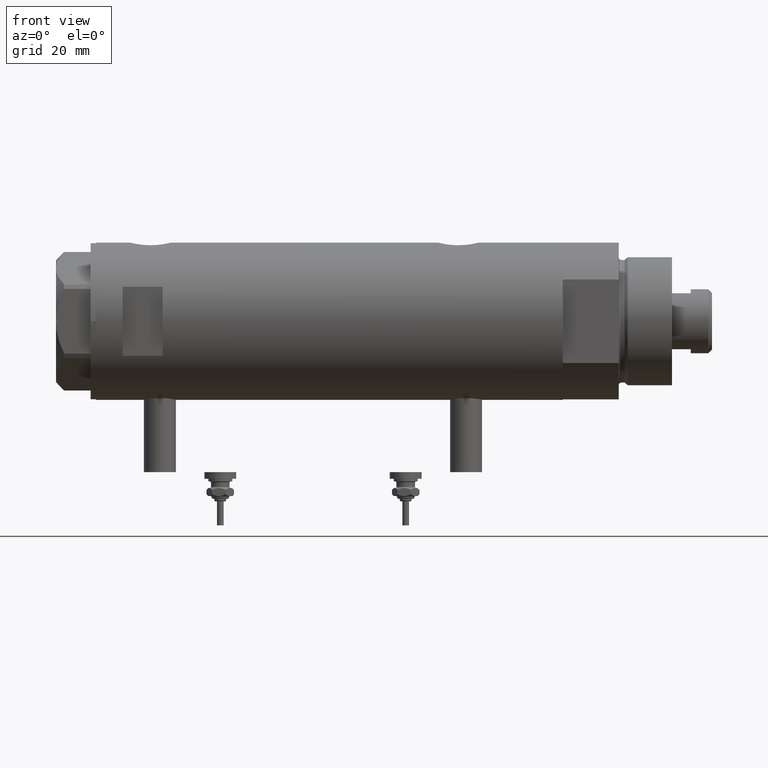
[diagram: clean part render]
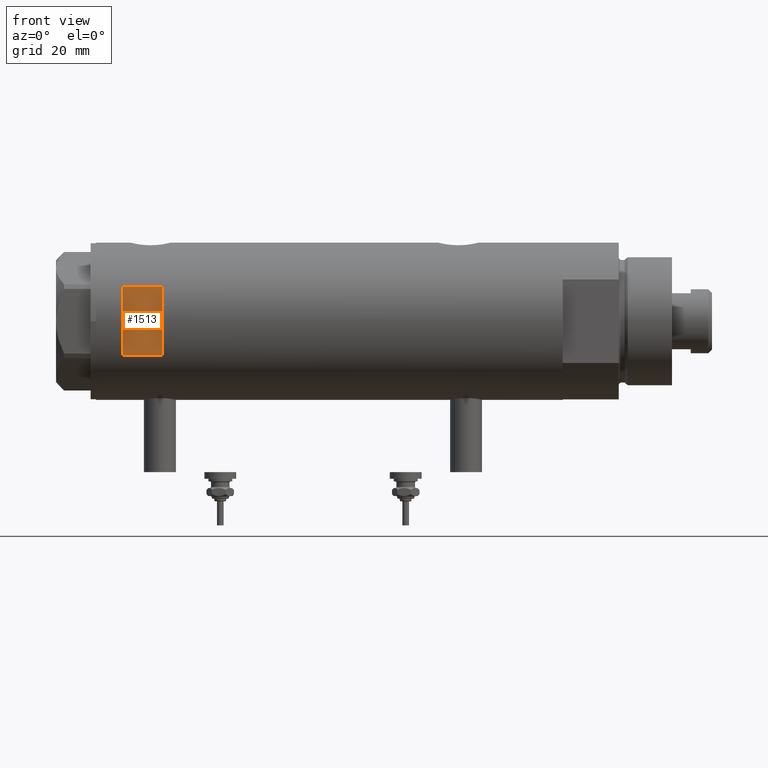
[diagram: same view with one face highlighted and labeled with its STEP entity id]
A machine part, front view. The second image highlights one B-rep face of the part: STEP entity #1513.
In plain terms, the highlighted planar face has unit normal (-0, 1, 0).
Its self-contained STEP definition (entity closure, byte-faithful):
#20 = ORIENTED_EDGE ( 'NONE', *, *, #2980, .T. ) ;
#268 = VECTOR ( 'NONE', #4401, 1000.000000000000000 ) ;
#286 = DIRECTION ( 'NONE',  ( 0.000000000000000000, 0.000000000000000000, 1.000000000000000000 ) ) ;
#355 = CARTESIAN_POINT ( 'NONE',  ( -29.50000000000000355, -26.50000000000000355, 77.60000000000002274 ) ) ;
#383 = PLANE ( 'NONE',  #421 ) ;
#421 = AXIS2_PLACEMENT_3D ( 'NONE', #2233, #3556, #5814 ) ;
#431 = DIRECTION ( 'NONE',  ( -0.000000000000000000, -0.000000000000000000, -1.000000000000000000 ) ) ;
#875 = ORIENTED_EDGE ( 'NONE', *, *, #3935, .T. ) ;
#920 = VERTEX_POINT ( 'NONE', #3939 ) ;
#1015 = VECTOR ( 'NONE', #286, 1000.000000000000000 ) ;
#1513 = ADVANCED_FACE ( 'NONE', ( #5416 ), #383, .F. ) ;
#1657 = CARTESIAN_POINT ( 'NONE',  ( 12.96148139681573319, -26.49999999999999645, -87.59999999999999432 ) ) ;
#1825 = DIRECTION ( 'NONE',  ( 1.000000000000000000, -0.000000000000000000, -0.000000000000000000 ) ) ;
#1826 = VERTEX_POINT ( 'NONE', #4344 ) ;
#2047 = LINE ( 'NONE', #1657, #1015 ) ;
#2233 = CARTESIAN_POINT ( 'NONE',  ( -29.50000000000000355, -26.50000000000000355, 77.60000000000002274 ) ) ;
#2303 = CARTESIAN_POINT ( 'NONE',  ( -12.96148139681573319, -26.49999999999998934, 62.59999999999998721 ) ) ;
#2355 = VECTOR ( 'NONE', #1825, 1000.000000000000000 ) ;
#2698 = CARTESIAN_POINT ( 'NONE',  ( 12.96148139681573319, -26.49999999999998934, 62.59999999999998721 ) ) ;
#2729 = LINE ( 'NONE', #4554, #5685 ) ;
#2953 = EDGE_CURVE ( 'NONE', #4483, #5333, #4500, .T. ) ;
#2980 = EDGE_CURVE ( 'NONE', #920, #4483, #2729, .T. ) ;
#3556 = DIRECTION ( 'NONE',  ( 0.000000000000000000, 1.000000000000000000, 0.000000000000000000 ) ) ;
#3619 = CARTESIAN_POINT ( 'NONE',  ( -29.50000000000000355, -26.50000000000000355, 62.60000000000001563 ) ) ;
#3935 = EDGE_CURVE ( 'NONE', #5333, #1826, #2047, .T. ) ;
#3939 = CARTESIAN_POINT ( 'NONE',  ( -12.96148139681573319, -26.49999999999998934, 77.60000000000002274 ) ) ;
#4344 = CARTESIAN_POINT ( 'NONE',  ( 12.96148139681573319, -26.49999999999998934, 77.60000000000002274 ) ) ;
#4401 = DIRECTION ( 'NONE',  ( 1.000000000000000000, -0.000000000000000000, -0.000000000000000000 ) ) ;
#4483 = VERTEX_POINT ( 'NONE', #2303 ) ;
#4492 = ORIENTED_EDGE ( 'NONE', *, *, #2953, .T. ) ;
#4500 = LINE ( 'NONE', #3619, #2355 ) ;
#4554 = CARTESIAN_POINT ( 'NONE',  ( -12.96148139681573319, -26.49999999999999645, -87.59999999999999432 ) ) ;
#5176 = EDGE_CURVE ( 'NONE', #920, #1826, #5378, .T. ) ;
#5194 = ORIENTED_EDGE ( 'NONE', *, *, #5176, .F. ) ;
#5333 = VERTEX_POINT ( 'NONE', #2698 ) ;
#5378 = LINE ( 'NONE', #355, #268 ) ;
#5416 = FACE_OUTER_BOUND ( 'NONE', #5766, .T. ) ;
#5685 = VECTOR ( 'NONE', #431, 1000.000000000000000 ) ;
#5766 = EDGE_LOOP ( 'NONE', ( #20, #4492, #875, #5194 ) ) ;
#5814 = DIRECTION ( 'NONE',  ( 0.000000000000000000, -0.000000000000000000, 1.000000000000000000 ) ) ;